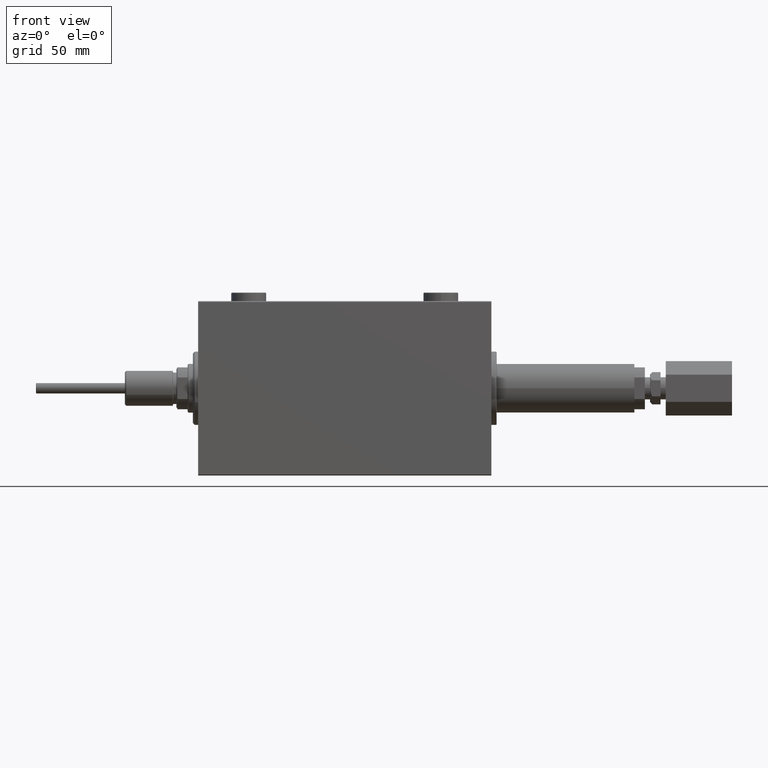
[diagram: clean part render]
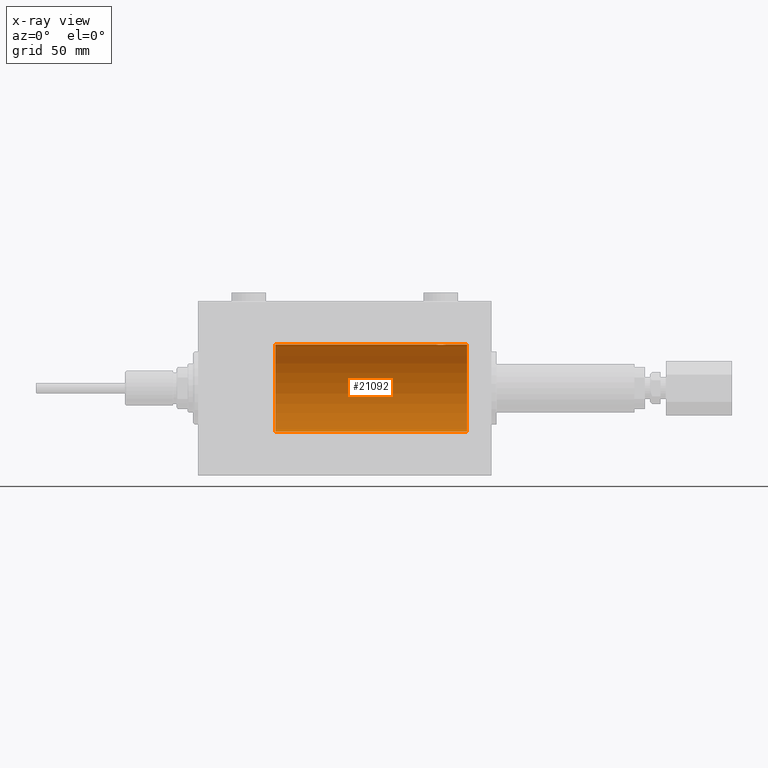
[diagram: x-ray — body ghosted, one internal face saturated and labeled with its STEP entity id]
A machine part, front view, then the same camera in x-ray: the body is ghosted and one INTERNAL B-rep face — a face not visible from any outside direction — is saturated and labeled: STEP entity #21092.
In plain terms, the highlighted cylindrical surface (partial cylindrical patch) has radius 25 mm, axis along (-1, -0, -0).
Its self-contained STEP definition (entity closure, byte-faithful):
#326 = CYLINDRICAL_SURFACE ( 'NONE', #28369, 25.00000000000000000 ) ;
#391 = CARTESIAN_POINT ( 'NONE',  ( 141.5720639145759208, 0.8063280894284530209, 24.98745245851526064 ) ) ;
#515 = CARTESIAN_POINT ( 'NONE',  ( 154.1999999999999886, 3.061616997868383043E-15, -25.00000000000000000 ) ) ;
#634 = CARTESIAN_POINT ( 'NONE',  ( 136.7163588498569311, 0.3289998300458034652, 24.99834914448732448 ) ) ;
#681 = CARTESIAN_POINT ( 'NONE',  ( 139.8487434273263545, 2.419890192637120574, -24.88262770889313913 ) ) ;
#796 = CARTESIAN_POINT ( 'NONE',  ( 44.20000000000000284, 0.000000000000000000, 0.000000000000000000 ) ) ;
#972 = DIRECTION ( 'NONE',  ( -1.000000000000000000, -0.000000000000000000, -0.000000000000000000 ) ) ;
#1374 = VERTEX_POINT ( 'NONE', #37983 ) ;
#1811 = EDGE_CURVE ( 'NONE', #17907, #24081, #38183, .T. ) ;
#2302 = VECTOR ( 'NONE', #972, 1000.000000000000000 ) ;
#2374 = CIRCLE ( 'NONE', #6286, 25.00000000000000000 ) ;
#3346 = CARTESIAN_POINT ( 'NONE',  ( 136.6999999999999886, -1.941505016884693205E-23, 25.00000000000000000 ) ) ;
#3607 = CARTESIAN_POINT ( 'NONE',  ( 137.0302954359012517, 1.252624798282884866, -24.96896960740658500 ) ) ;
#3807 = CARTESIAN_POINT ( 'NONE',  ( 141.4465167882086973, 1.109060198064593550, 24.97584694923137505 ) ) ;
#4059 = CARTESIAN_POINT ( 'NONE',  ( 141.6999999999999886, 1.295837268639916895E-15, 25.00000000000000000 ) ) ;
#4103 = CARTESIAN_POINT ( 'NONE',  ( 141.3686181825248127, 1.254434665533501914, -24.96887599906795785 ) ) ;
#4295 = CARTESIAN_POINT ( 'NONE',  ( 137.0313818174751646, 1.254434665533510351, 24.96887599906795785 ) ) ;
#4340 = CARTESIAN_POINT ( 'NONE',  ( 136.7162313173084272, 0.3278008924763798349, -24.99836206720144105 ) ) ;
#4540 = CARTESIAN_POINT ( 'NONE',  ( 141.6837686826915785, 0.3278008924763831655, 24.99836206720144105 ) ) ;
#4567 = CARTESIAN_POINT ( 'NONE',  ( 154.1999999999999886, 3.061616997868383043E-15, -25.00000000000000000 ) ) ;
#4618 = CARTESIAN_POINT ( 'NONE',  ( 154.1999999999999886, 0.000000000000000000, 25.00000000000000000 ) ) ;
#6286 = AXIS2_PLACEMENT_3D ( 'NONE', #35495, #27176, #19822 ) ;
#6787 = ORIENTED_EDGE ( 'NONE', *, *, #20581, .T. ) ;
#7042 = CARTESIAN_POINT ( 'NONE',  ( 141.1875883461209185, 1.525124164792366788, -24.95380474534676907 ) ) ;
#7973 = CARTESIAN_POINT ( 'NONE',  ( 141.7000000000000171, 0.1652919547268412170, 25.00000000000000355 ) ) ;
#8014 = CARTESIAN_POINT ( 'NONE',  ( 140.8507520635479011, 1.884745564839663823, -24.92912799315484662 ) ) ;
#8028 = LINE ( 'NONE', #45289, #34905 ) ;
#8450 = CARTESIAN_POINT ( 'NONE',  ( 138.8719822772499981, 2.483775543901324934, 24.87633190989611620 ) ) ;
#10199 = AXIS2_PLACEMENT_3D ( 'NONE', #796, #23555, #38512 ) ;
#10967 = CARTESIAN_POINT ( 'NONE',  ( 138.3931641111286694, 2.371819214216742466, -24.88731391344728294 ) ) ;
#11261 = VERTEX_POINT ( 'NONE', #11540 ) ;
#11540 = CARTESIAN_POINT ( 'NONE',  ( 44.20000000000000284, 0.000000000000000000, 25.00000000000000000 ) ) ;
#11578 = DIRECTION ( 'NONE',  ( 0.000000000000000000, 0.000000000000000000, 1.000000000000000000 ) ) ;
#11651 = CARTESIAN_POINT ( 'NONE',  ( 140.7263350351234124, 1.986787236855530159, 24.92109717386378165 ) ) ;
#11695 = CARTESIAN_POINT ( 'NONE',  ( 136.8279360854240281, 0.8063280894284423628, -24.98745245851526064 ) ) ;
#11898 = CARTESIAN_POINT ( 'NONE',  ( 140.8521499785082369, 1.883339088673190664, 24.92922739080161065 ) ) ;
#11979 = LINE ( 'NONE', #4618, #33184 ) ;
#12717 = LINE ( 'NONE', #16374, #2302 ) ;
#12861 = ORIENTED_EDGE ( 'NONE', *, *, #24637, .T. ) ;
#12921 = EDGE_CURVE ( 'NONE', #35353, #36088, #2374, .T. ) ;
#13742 = ORIENTED_EDGE ( 'NONE', *, *, #43970, .T. ) ;
#13778 = ORIENTED_EDGE ( 'NONE', *, *, #12921, .F. ) ;
#13979 = ORIENTED_EDGE ( 'NONE', *, *, #30086, .T. ) ;
#14637 = CARTESIAN_POINT ( 'NONE',  ( 137.3173028702410647, 1.652881481536635944, -24.94556728625771669 ) ) ;
#14883 = CARTESIAN_POINT ( 'NONE',  ( 138.5508348400067860, 2.419847904056438459, -24.88263203448060423 ) ) ;
#15129 = CARTESIAN_POINT ( 'NONE',  ( 137.6736649648765649, 1.986787236855539263, -24.92109717386378165 ) ) ;
#15322 = CARTESIAN_POINT ( 'NONE',  ( 139.8491651599932766, 2.419847904056424692, 24.88263203448060423 ) ) ;
#15330 = VERTEX_POINT ( 'NONE', #15397 ) ;
#15365 = CARTESIAN_POINT ( 'NONE',  ( 140.3074523681979713, 2.247309494740956204, -24.89886665287248846 ) ) ;
#15397 = CARTESIAN_POINT ( 'NONE',  ( 136.6999999999999886, -3.862373350018130266E-15, -25.00000000000000000 ) ) ;
#15609 = CARTESIAN_POINT ( 'NONE',  ( 140.0046391329981930, 2.372637051600630098, -24.88723676875459034 ) ) ;
#15805 = CARTESIAN_POINT ( 'NONE',  ( 139.5263744922734190, 2.484060984458429822, 24.87630362147114127 ) ) ;
#16374 = CARTESIAN_POINT ( 'NONE',  ( 154.1999999999999886, 3.061616997868383043E-15, -25.00000000000000000 ) ) ;
#17907 = VERTEX_POINT ( 'NONE', #48136 ) ;
#18317 = CARTESIAN_POINT ( 'NONE',  ( 136.9534832117913083, 1.109060198064584890, -24.97584694923137505 ) ) ;
#18558 = CARTESIAN_POINT ( 'NONE',  ( 136.6999999999999886, 0.1652919547268373313, -25.00000000000000355 ) ) ;
#19000 = CARTESIAN_POINT ( 'NONE',  ( 140.4530411352993440, 2.169541443997994534, 24.90585268157805032 ) ) ;
#19043 = CARTESIAN_POINT ( 'NONE',  ( 141.6196643608411136, 0.6495680347195887938, -24.99207398768918864 ) ) ;
#19056 = DIRECTION ( 'NONE',  ( -1.000000000000000000, -0.000000000000000000, -0.000000000000000000 ) ) ;
#19239 = CARTESIAN_POINT ( 'NONE',  ( 136.7803356391588636, 0.6495680347195815774, 24.99207398768918864 ) ) ;
#19284 = CARTESIAN_POINT ( 'NONE',  ( 136.7798096452084167, 0.6474866336855696902, -24.99212517028519187 ) ) ;
#19379 = VERTEX_POINT ( 'NONE', #22526 ) ;
#19481 = CARTESIAN_POINT ( 'NONE',  ( 137.3157669807001469, 1.651337078997080487, 24.94567646296264485 ) ) ;
#19499 = B_SPLINE_CURVE_WITH_KNOTS ( 'NONE', 3,
 ( #22232, #18558, #4340, #19284, #11695, #18317, #3607, #22963, #14637, #48475, #15129, #26645, #41100, #10967, #14883, #34244, #40609, #26396, #45026, #681, #15609, #15365, #37913, #30321, #8014, #37673, #7042, #4103, #30564, #26154, #19043, #22473, #34002, #45522 ),
 .UNSPECIFIED., .F., .F.,
 ( 4, 2, 2, 2, 2, 2, 2, 2, 2, 2, 2, 2, 2, 2, 2, 2, 4 ),
 ( 7.419629657139217649E-19, 0.0004888140276038944977, 0.0009776280552077881280, 0.001466442082811681867, 0.001955256110415575822, 0.002444070138019469561, 0.002932884165623363300, 0.003421698193227257039, 0.003910512220831150777, 0.004399326248435044516, 0.004888140276038938255, 0.005376954303642831993, 0.005865768331246725732, 0.006354582358850619471, 0.006843396386454513210, 0.007332210414058406948, 0.007821024441662299820 ),
 .UNSPECIFIED. ) ;
#19560 = DIRECTION ( 'NONE',  ( -1.000000000000000000, -0.000000000000000000, -0.000000000000000000 ) ) ;
#19726 = CARTESIAN_POINT ( 'NONE',  ( 141.0826971297589125, 1.652881481536631059, 24.94556728625771669 ) ) ;
#19822 = DIRECTION ( 'NONE',  ( 0.000000000000000000, 0.000000000000000000, 1.000000000000000000 ) ) ;
#20581 = EDGE_CURVE ( 'NONE', #15330, #1374, #19499, .T. ) ;
#21092 = ADVANCED_FACE ( 'NONE', ( #48109 ), #326, .F. ) ;
#22232 = CARTESIAN_POINT ( 'NONE',  ( 136.6999999999999886, -3.862373350018130266E-15, -25.00000000000000000 ) ) ;
#22428 = CARTESIAN_POINT ( 'NONE',  ( 139.3640796937673940, 2.499940606140119925, 24.87469189697262095 ) ) ;
#22473 = CARTESIAN_POINT ( 'NONE',  ( 141.6836411501430746, 0.3289998300458087388, -24.99834914448732448 ) ) ;
#22526 = CARTESIAN_POINT ( 'NONE',  ( 44.20000000000000284, 3.061616997868383043E-15, -25.00000000000000000 ) ) ;
#22922 = CARTESIAN_POINT ( 'NONE',  ( 141.6201903547915606, 0.6474866336855715776, 24.99212517028519187 ) ) ;
#22963 = CARTESIAN_POINT ( 'NONE',  ( 137.2117533317805851, 1.524323445682828737, -24.95385641887458661 ) ) ;
#23156 = CARTESIAN_POINT ( 'NONE',  ( 136.6999999999999886, -1.941505016884693205E-23, 25.00000000000000000 ) ) ;
#23555 = DIRECTION ( 'NONE',  ( -1.000000000000000000, 0.000000000000000000, 0.000000000000000000 ) ) ;
#24081 = VERTEX_POINT ( 'NONE', #3346 ) ;
#24637 = EDGE_CURVE ( 'NONE', #35353, #17907, #11979, .T. ) ;
#26154 = CARTESIAN_POINT ( 'NONE',  ( 141.5723710919858149, 0.8054273576766400877, -24.98748174524255461 ) ) ;
#26396 = CARTESIAN_POINT ( 'NONE',  ( 139.3622647661338192, 2.500059064463605374, -24.87467999146394959 ) ) ;
#26597 = CARTESIAN_POINT ( 'NONE',  ( 137.9462846651881023, 2.169035936979772927, 24.90589343070811168 ) ) ;
#26645 = CARTESIAN_POINT ( 'NONE',  ( 137.9469588647006617, 2.169541443998006525, -24.90585268157805032 ) ) ;
#26845 = CARTESIAN_POINT ( 'NONE',  ( 140.0068358888712794, 2.371819214216737581, 24.88731391344728294 ) ) ;
#27077 = CARTESIAN_POINT ( 'NONE',  ( 137.2124116538790872, 1.525124164792371007, 24.95380474534676907 ) ) ;
#27176 = DIRECTION ( 'NONE',  ( -1.000000000000000000, 0.000000000000000000, 0.000000000000000000 ) ) ;
#28369 = AXIS2_PLACEMENT_3D ( 'NONE', #37065, #29718, #11578 ) ;
#29718 = DIRECTION ( 'NONE',  ( -1.000000000000000000, -0.000000000000000000, -0.000000000000000000 ) ) ;
#30086 = EDGE_CURVE ( 'NONE', #24081, #11261, #8028, .T. ) ;
#30276 = CARTESIAN_POINT ( 'NONE',  ( 138.3953608670018127, 2.372637051600615443, 24.88723676875459034 ) ) ;
#30321 = CARTESIAN_POINT ( 'NONE',  ( 140.7245034418718319, 1.988066470813643072, -24.92099187803979987 ) ) ;
#30564 = CARTESIAN_POINT ( 'NONE',  ( 141.4469237640895187, 1.108237982093038809, -24.97588368351298627 ) ) ;
#30758 = CARTESIAN_POINT ( 'NONE',  ( 137.6754965581281738, 1.988066470813628639, 24.92099187803979632 ) ) ;
#30989 = CARTESIAN_POINT ( 'NONE',  ( 139.0377352338661581, 2.500059064463591163, 24.87467999146395314 ) ) ;
#31179 = EDGE_LOOP ( 'NONE', ( #38218, #13778, #12861, #37508, #13979, #13742, #43848, #6787 ) ) ;
#33184 = VECTOR ( 'NONE', #19560, 1000.000000000000000 ) ;
#33715 = CARTESIAN_POINT ( 'NONE',  ( 140.3076599552390178, 2.247131495942860102, 24.89888190765473297 ) ) ;
#34002 = CARTESIAN_POINT ( 'NONE',  ( 141.7000000000000455, 0.1632133729155582358, -25.00000000000000355 ) ) ;
#34244 = CARTESIAN_POINT ( 'NONE',  ( 138.8736255077265582, 2.484060984458444477, -24.87630362147113772 ) ) ;
#34701 = LINE ( 'NONE', #4567, #39831 ) ;
#34905 = VECTOR ( 'NONE', #19056, 1000.000000000000000 ) ;
#35353 = VERTEX_POINT ( 'NONE', #47038 ) ;
#35495 = CARTESIAN_POINT ( 'NONE',  ( 154.1999999999999886, 0.000000000000000000, 0.000000000000000000 ) ) ;
#36026 = CIRCLE ( 'NONE', #10199, 25.00000000000000000 ) ;
#36088 = VERTEX_POINT ( 'NONE', #515 ) ;
#37065 = CARTESIAN_POINT ( 'NONE',  ( 154.1999999999999886, 0.000000000000000000, 0.000000000000000000 ) ) ;
#37378 = CARTESIAN_POINT ( 'NONE',  ( 138.5512565726736227, 2.419890192637106807, 24.88262770889313913 ) ) ;
#37508 = ORIENTED_EDGE ( 'NONE', *, *, #1811, .T. ) ;
#37673 = CARTESIAN_POINT ( 'NONE',  ( 141.0842330192998588, 1.651337078997093588, -24.94567646296264485 ) ) ;
#37870 = CARTESIAN_POINT ( 'NONE',  ( 141.1882466682193638, 1.524323445682832734, 24.95385641887458661 ) ) ;
#37913 = CARTESIAN_POINT ( 'NONE',  ( 140.4537153348119318, 2.169035936979786250, -24.90589343070811168 ) ) ;
#37983 = CARTESIAN_POINT ( 'NONE',  ( 141.6999999999999886, 3.061616978453880738E-15, -25.00000000000000000 ) ) ;
#38183 = B_SPLINE_CURVE_WITH_KNOTS ( 'NONE', 3,
 ( #4059, #7973, #4540, #22922, #391, #3807, #42027, #37870, #19726, #11898, #11651, #19000, #33715, #26845, #15322, #15805, #22428, #30989, #8450, #37378, #30276, #45230, #26597, #30758, #45715, #19481, #27077, #4295, #45951, #41546, #19239, #634, #41791, #23156 ),
 .UNSPECIFIED., .F., .F.,
 ( 4, 2, 2, 2, 2, 2, 2, 2, 2, 2, 2, 2, 2, 2, 2, 2, 4 ),
 ( 1.259191682860468202E-18, 0.0004888140276038936303, 0.0009776280552077859596, 0.001466442082811678180, 0.001955256110415570618, 0.002444070138019463056, 0.002932884165623355060, 0.003421698193227247498, 0.003910512220831139502, 0.004399326248435031506, 0.004888140276038924377, 0.005376954303642816381, 0.005865768331246708385, 0.006354582358850601256, 0.006843396386454493260, 0.007332210414058386132, 0.007821024441662279003 ),
 .UNSPECIFIED. ) ;
#38218 = ORIENTED_EDGE ( 'NONE', *, *, #40825, .F. ) ;
#38512 = DIRECTION ( 'NONE',  ( 0.000000000000000000, 0.000000000000000000, 1.000000000000000000 ) ) ;
#39831 = VECTOR ( 'NONE', #45508, 1000.000000000000000 ) ;
#40609 = CARTESIAN_POINT ( 'NONE',  ( 139.0359203062326401, 2.499940606140133692, -24.87469189697262095 ) ) ;
#40825 = EDGE_CURVE ( 'NONE', #36088, #1374, #34701, .T. ) ;
#41100 = CARTESIAN_POINT ( 'NONE',  ( 138.0923400447609595, 2.247131495942859658, -24.89888190765473297 ) ) ;
#41372 = EDGE_CURVE ( 'NONE', #15330, #19379, #12717, .T. ) ;
#41546 = CARTESIAN_POINT ( 'NONE',  ( 136.8276289080141908, 0.8054273576766317611, 24.98748174524255461 ) ) ;
#41791 = CARTESIAN_POINT ( 'NONE',  ( 136.6999999999999602, 0.1632133729155546553, 25.00000000000000355 ) ) ;
#42027 = CARTESIAN_POINT ( 'NONE',  ( 141.3697045640987255, 1.252624798282890639, 24.96896960740658500 ) ) ;
#43848 = ORIENTED_EDGE ( 'NONE', *, *, #41372, .F. ) ;
#43970 = EDGE_CURVE ( 'NONE', #11261, #19379, #36026, .T. ) ;
#45026 = CARTESIAN_POINT ( 'NONE',  ( 139.5280177227500360, 2.483775543901338700, -24.87633190989611265 ) ) ;
#45230 = CARTESIAN_POINT ( 'NONE',  ( 138.0925476318020344, 2.247309494740942437, 24.89886665287248135 ) ) ;
#45289 = CARTESIAN_POINT ( 'NONE',  ( 154.1999999999999886, 0.000000000000000000, 25.00000000000000000 ) ) ;
#45508 = DIRECTION ( 'NONE',  ( -1.000000000000000000, -0.000000000000000000, -0.000000000000000000 ) ) ;
#45522 = CARTESIAN_POINT ( 'NONE',  ( 141.6999999999999886, 3.061616978453880738E-15, -25.00000000000000000 ) ) ;
#45715 = CARTESIAN_POINT ( 'NONE',  ( 137.5492479364520761, 1.884745564839649834, 24.92912799315484662 ) ) ;
#45951 = CARTESIAN_POINT ( 'NONE',  ( 136.9530762359104585, 1.108237982093028595, 24.97588368351298627 ) ) ;
#47038 = CARTESIAN_POINT ( 'NONE',  ( 154.1999999999999886, 0.000000000000000000, 25.00000000000000000 ) ) ;
#48109 = FACE_OUTER_BOUND ( 'NONE', #31179, .T. ) ;
#48136 = CARTESIAN_POINT ( 'NONE',  ( 141.6999999999999886, 1.295837268639916895E-15, 25.00000000000000000 ) ) ;
#48475 = CARTESIAN_POINT ( 'NONE',  ( 137.5478500214917403, 1.883339088673198214, -24.92922739080161065 ) ) ;